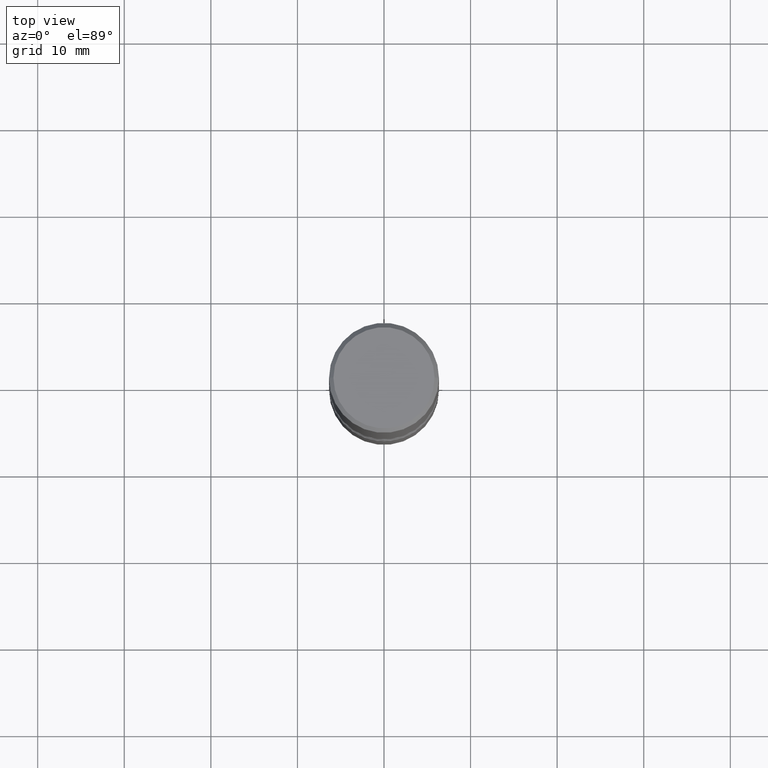
[diagram: clean part render]
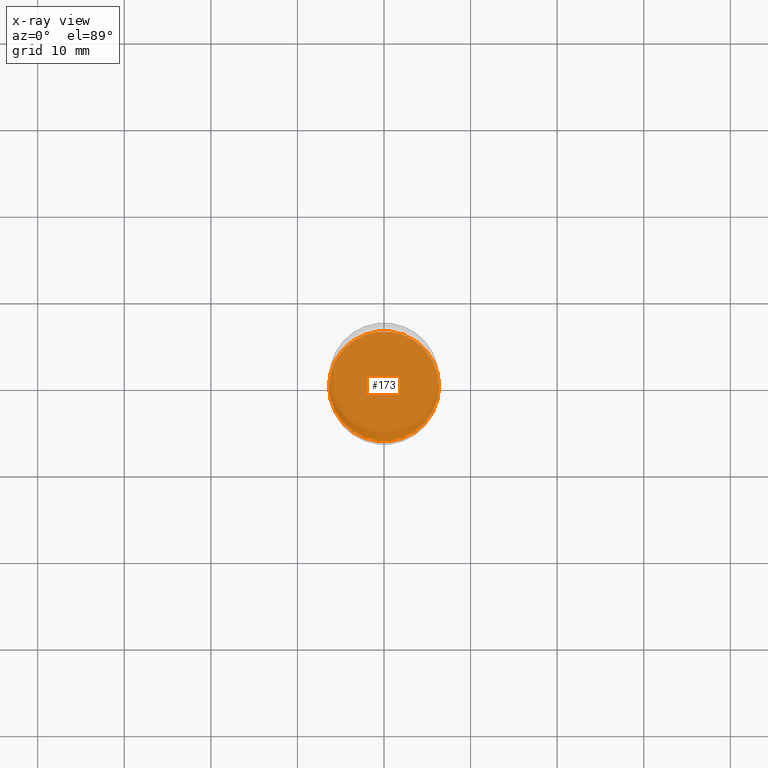
[diagram: x-ray — body ghosted, one internal face saturated and labeled with its STEP entity id]
A machine part, top view, then the same camera in x-ray: the body is ghosted and one INTERNAL B-rep face — a face not visible from any outside direction — is saturated and labeled: STEP entity #173.
In plain terms, the highlighted planar face has unit normal (0, -0, -1).
Its self-contained STEP definition (entity closure, byte-faithful):
#18 = CIRCLE ( 'NONE', #361, 0.2500000000000003886 ) ;
#41 = DIRECTION ( 'NONE',  ( 2.438088387897960049E-29, -3.491481338843145188E-15, -1.000000000000000000 ) ) ;
#83 = EDGE_LOOP ( 'NONE', ( #109, #492 ) ) ;
#87 = DIRECTION ( 'NONE',  ( -2.445468806185136597E-29, 3.491481338843145583E-15, 1.000000000000000000 ) ) ;
#99 = DIRECTION ( 'NONE',  ( -2.445468806185136597E-29, 3.491481338843145583E-15, 1.000000000000000000 ) ) ;
#109 = ORIENTED_EDGE ( 'NONE', *, *, #224, .T. ) ;
#173 = ADVANCED_FACE ( 'NONE', ( #513 ), #464, .F. ) ;
#209 = DIRECTION ( 'NONE',  ( -1.000000000000000000, 6.982962677686265922E-15, -4.876176775795935793E-29 ) ) ;
#224 = EDGE_CURVE ( 'NONE', #327, #239, #18, .T. ) ;
#237 = CARTESIAN_POINT ( 'NONE',  ( 3.785429481638292293E-29, -1.031449620669491633E-14, -2.250000000000000888 ) ) ;
#239 = VERTEX_POINT ( 'NONE', #258 ) ;
#258 = CARTESIAN_POINT ( 'NONE',  ( -0.2500000000000003886, -7.668100182170457762E-15, -2.250000000000001332 ) ) ;
#298 = DIRECTION ( 'NONE',  ( 1.000000000000000000, -6.982962677686263555E-15, 0.000000000000000000 ) ) ;
#305 = CIRCLE ( 'NONE', #362, 0.2500000000000003886 ) ;
#306 = CARTESIAN_POINT ( 'NONE',  ( 5.502304813916559585E-29, -7.855833012397081604E-15, -2.250000000000001332 ) ) ;
#327 = VERTEX_POINT ( 'NONE', #521 ) ;
#361 = AXIS2_PLACEMENT_3D ( 'NONE', #306, #87, #298 ) ;
#362 = AXIS2_PLACEMENT_3D ( 'NONE', #366, #99, #500 ) ;
#366 = CARTESIAN_POINT ( 'NONE',  ( 5.502304813916559585E-29, -7.855833012397081604E-15, -2.250000000000001332 ) ) ;
#464 = PLANE ( 'NONE',  #523 ) ;
#492 = ORIENTED_EDGE ( 'NONE', *, *, #552, .T. ) ;
#500 = DIRECTION ( 'NONE',  ( 1.000000000000000000, -6.982962677686263555E-15, 0.000000000000000000 ) ) ;
#513 = FACE_OUTER_BOUND ( 'NONE', #83, .T. ) ;
#521 = CARTESIAN_POINT ( 'NONE',  ( 0.2500000000000003886, -9.601573681818649859E-15, -2.250000000000001332 ) ) ;
#523 = AXIS2_PLACEMENT_3D ( 'NONE', #237, #41, #209 ) ;
#552 = EDGE_CURVE ( 'NONE', #239, #327, #305, .T. ) ;